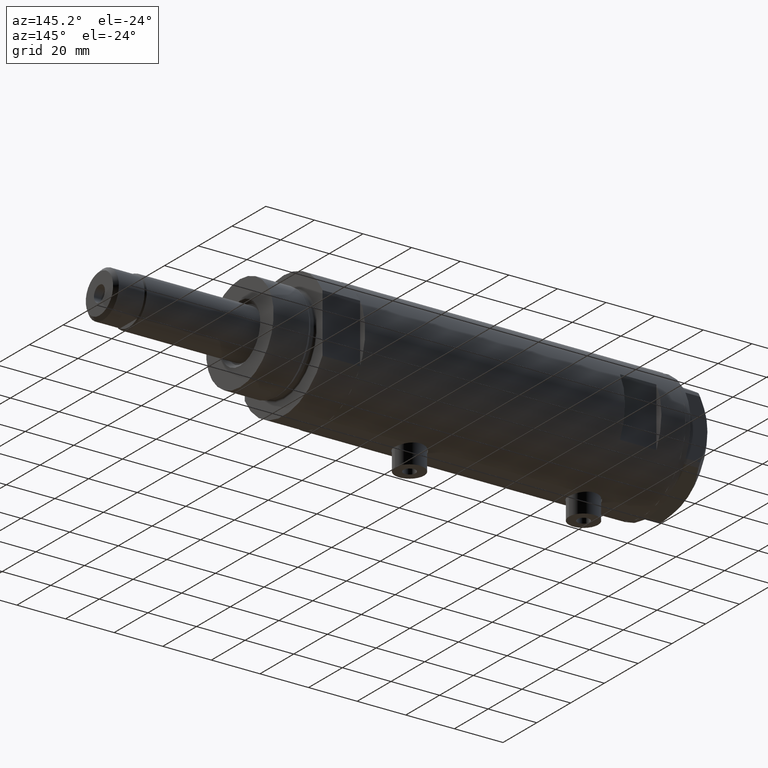
[diagram: clean part render]
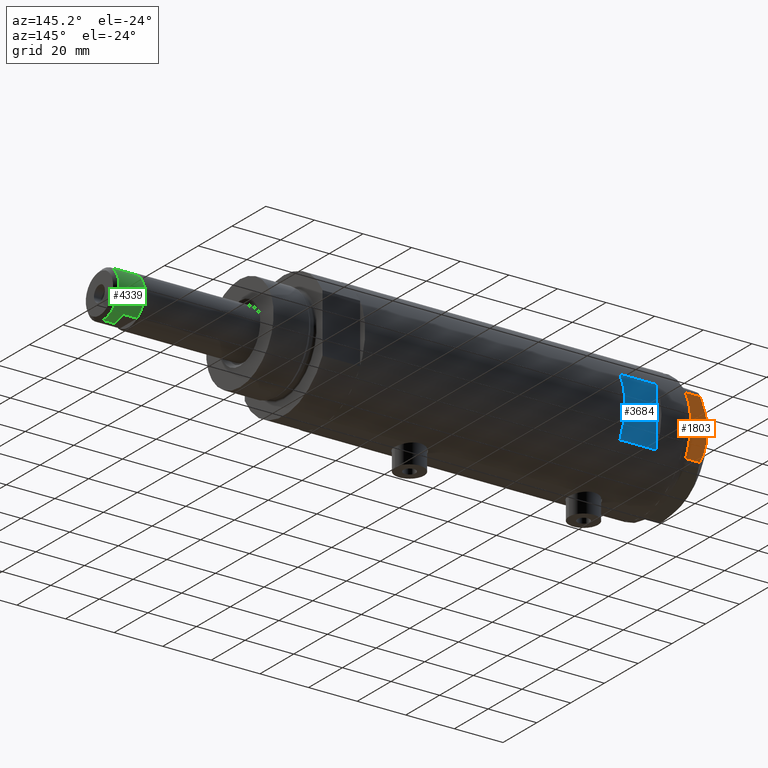
[diagram: same view with three faces highlighted in distinct colors, each labeled with its STEP entity id]
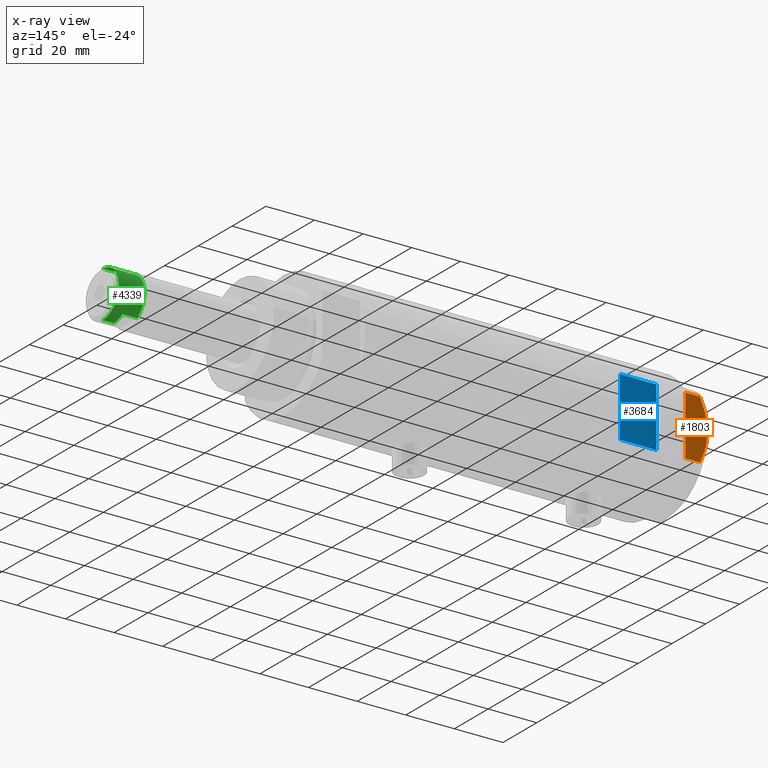
[diagram: x-ray of the same camera — body ghosted, the three highlighted faces saturated]
A machine part, auxiliary view with three faces highlighted in distinct colors.
The next image is the same camera in x-ray (body ghosted, the three faces saturated) — at least one of them is partly hidden behind the body in this view.
Their STEP definitions:

[orange] entity #1803 — the highlighted planar face has unit normal (0, -1, 0).
#101 = VECTOR ( 'NONE', #3932, 1000.000000000000000 ) ;
#159 = CARTESIAN_POINT ( 'NONE',  ( 23.00000000000008527, -13.27905619136115867, 0.000000000000000000 ) ) ;
#209 = CARTESIAN_POINT ( 'NONE',  ( 22.99999999999999289, -4.194757081058811288, 8.703000351525204792 ) ) ;
#236 = CARTESIAN_POINT ( 'NONE',  ( 22.99999999999986500, 8.252113629125430450, 7.581642062680224115 ) ) ;
#246 = CARTESIAN_POINT ( 'NONE',  ( 22.99999999999997513, -2.122900714017905699, 9.000000000000095923 ) ) ;
#251 = CARTESIAN_POINT ( 'NONE',  ( 22.99999999999995026, 2.373657066004705010E-13, 9.000000000000000000 ) ) ;
#276 = CARTESIAN_POINT ( 'NONE',  ( 23.00000000000005684, -10.23890159976104641, 6.840812428290920622 ) ) ;
#279 = CARTESIAN_POINT ( 'NONE',  ( 22.99999999999982236, 12.15905619136163729, 0.000000000000000000 ) ) ;
#301 = ORIENTED_EDGE ( 'NONE', *, *, #2449, .F. ) ;
#415 = VERTEX_POINT ( 'NONE', #3810 ) ;
#416 = ORIENTED_EDGE ( 'NONE', *, *, #3246, .T. ) ;
#451 = VECTOR ( 'NONE', #1608, 1000.000000000000000 ) ;
#464 = DIRECTION ( 'NONE',  ( 1.032024811306395780E-14, -1.000000000000000000, 0.000000000000000000 ) ) ;
#498 = CARTESIAN_POINT ( 'NONE',  ( 22.99999999999993960, 1.063773509315896648, 8.981438083606837708 ) ) ;
#506 = EDGE_LOOP ( 'NONE', ( #301, #5071, #553, #572, #913, #416, #4636 ) ) ;
#553 = ORIENTED_EDGE ( 'NONE', *, *, #4951, .T. ) ;
#572 = ORIENTED_EDGE ( 'NONE', *, *, #5081, .T. ) ;
#597 = CARTESIAN_POINT ( 'NONE',  ( 23.00000000000004263, -8.748091966971204059, 7.396818978284578350 ) ) ;
#663 = EDGE_CURVE ( 'NONE', #415, #4930, #2808, .T. ) ;
#685 = CARTESIAN_POINT ( 'NONE',  ( 22.99999999999990052, 5.228918809624284236, 8.433337033849852560 ) ) ;
#836 = CARTESIAN_POINT ( 'NONE',  ( 23.00000000000007461, -12.15905619136115412, 5.983800287807623519 ) ) ;
#913 = ORIENTED_EDGE ( 'NONE', *, *, #663, .T. ) ;
#1048 = VECTOR ( 'NONE', #4984, 1000.000000000000000 ) ;
#1153 = CARTESIAN_POINT ( 'NONE',  ( 22.99999999999983658, 10.22738952213810926, 6.832470313674774864 ) ) ;
#1217 = CARTESIAN_POINT ( 'NONE',  ( 22.99999999999982236, 12.15905619136163729, 9.000000000000000000 ) ) ;
#1383 = EDGE_CURVE ( 'NONE', #2035, #2961, #2590, .T. ) ;
#1564 = CARTESIAN_POINT ( 'NONE',  ( 23.00000000000007461, -12.15905619136115412, 5.983800287807623519 ) ) ;
#1584 = DIRECTION ( 'NONE',  ( -1.032024811306395780E-14, 1.000000000000000000, 0.000000000000000000 ) ) ;
#1598 = VERTEX_POINT ( 'NONE', #251 ) ;
#1608 = DIRECTION ( 'NONE',  ( 0.000000000000000000, 0.000000000000000000, 1.000000000000000000 ) ) ;
#1723 = B_SPLINE_CURVE_WITH_KNOTS ( 'NONE', 3,
 ( #3410, #3035, #498, #1753, #1959, #5067, #685, #2725, #236, #4761, #1153, #3491, #1854, #3458 ),
 .UNSPECIFIED., .F., .F.,
 ( 4, 2, 2, 2, 2, 2, 4 ),
 ( 0.04777139595992689614, 0.04934380568070229067, 0.05091621540147768521, 0.05406103484302848122, 0.05720585428457927030, 0.05877826400535466483, 0.06035067372613005937 ),
 .UNSPECIFIED. ) ;
#1753 = CARTESIAN_POINT ( 'NONE',  ( 22.99999999999992539, 2.119709279062085727, 8.908535212173203988 ) ) ;
#1803 = ADVANCED_FACE ( 'NONE', ( #3260 ), #2872, .F. ) ;
#1854 = CARTESIAN_POINT ( 'NONE',  ( 22.99999999999982947, 11.68282849742352525, 6.206372352695418648 ) ) ;
#1959 = CARTESIAN_POINT ( 'NONE',  ( 22.99999999999992184, 2.643615312305318099, 8.854304560636265364 ) ) ;
#2035 = VERTEX_POINT ( 'NONE', #836 ) ;
#2056 = LINE ( 'NONE', #1217, #451 ) ;
#2199 = CARTESIAN_POINT ( 'NONE',  ( 23.00000000000007461, -12.15905619136115590, 0.000000000000000000 ) ) ;
#2213 = CARTESIAN_POINT ( 'NONE',  ( 23.00000000000002842, -7.239756182922028493, 7.892186063422852449 ) ) ;
#2292 = LINE ( 'NONE', #159, #1048 ) ;
#2322 = CARTESIAN_POINT ( 'NONE',  ( 22.99999999999995026, 2.373657066004705010E-13, 9.000000000000000000 ) ) ;
#2393 = VECTOR ( 'NONE', #1584, 1000.000000000000000 ) ;
#2449 = EDGE_CURVE ( 'NONE', #2035, #1598, #2683, .T. ) ;
#2590 = LINE ( 'NONE', #4512, #4391 ) ;
#2683 = B_SPLINE_CURVE_WITH_KNOTS ( 'NONE', 3,
 ( #1564, #3918, #276, #597, #4639, #2213, #3818, #209, #246, #2322 ),
 .UNSPECIFIED., .F., .F.,
 ( 4, 2, 2, 2, 4 ),
 ( 0.03516523594057417712, 0.03831677594541235687, 0.03989254594783144675, 0.04146831595025053663, 0.04777139595992689614 ),
 .UNSPECIFIED. ) ;
#2725 = CARTESIAN_POINT ( 'NONE',  ( 22.99999999999987921, 7.253003311474552461, 7.903276810347635184 ) ) ;
#2791 = LINE ( 'NONE', #4716, #2393 ) ;
#2808 = LINE ( 'NONE', #4763, #101 ) ;
#2826 = CARTESIAN_POINT ( 'NONE',  ( 23.00000000000007461, -12.12435565298200224, 0.000000000000000000 ) ) ;
#2872 = PLANE ( 'NONE',  #3382 ) ;
#2961 = VERTEX_POINT ( 'NONE', #2199 ) ;
#3035 = CARTESIAN_POINT ( 'NONE',  ( 22.99999999999994671, 0.5295934231899334099, 9.000000000000095923 ) ) ;
#3236 = DIRECTION ( 'NONE',  ( -1.000000000000000000, -1.032024811306395780E-14, 0.000000000000000000 ) ) ;
#3246 = EDGE_CURVE ( 'NONE', #4930, #3780, #2056, .T. ) ;
#3260 = FACE_OUTER_BOUND ( 'NONE', #506, .T. ) ;
#3292 = DIRECTION ( 'NONE',  ( 0.000000000000000000, 0.000000000000000000, -1.000000000000000000 ) ) ;
#3382 = AXIS2_PLACEMENT_3D ( 'NONE', #3716, #3236, #464 ) ;
#3410 = CARTESIAN_POINT ( 'NONE',  ( 22.99999999999995026, 2.373657066004705010E-13, 9.000000000000000000 ) ) ;
#3458 = CARTESIAN_POINT ( 'NONE',  ( 22.99999999999982236, 12.15905619136164262, 5.983800287807618190 ) ) ;
#3491 = CARTESIAN_POINT ( 'NONE',  ( 22.99999999999984368, 11.20155944044832630, 6.421102682632754188 ) ) ;
#3716 = CARTESIAN_POINT ( 'NONE',  ( 23.00000000000008527, -13.27905619136115867, 9.000000000000000000 ) ) ;
#3780 = VERTEX_POINT ( 'NONE', #4971 ) ;
#3810 = CARTESIAN_POINT ( 'NONE',  ( 22.99999999999982592, 12.12435565298247653, 0.000000000000000000 ) ) ;
#3818 = CARTESIAN_POINT ( 'NONE',  ( 23.00000000000002132, -6.734330413511252722, 8.039389741252669808 ) ) ;
#3918 = CARTESIAN_POINT ( 'NONE',  ( 23.00000000000006395, -11.20825071633898240, 6.428173306378455187 ) ) ;
#3932 = DIRECTION ( 'NONE',  ( -1.032024811306395780E-14, 1.000000000000000000, 0.000000000000000000 ) ) ;
#4391 = VECTOR ( 'NONE', #3292, 1000.000000000000000 ) ;
#4512 = CARTESIAN_POINT ( 'NONE',  ( 23.00000000000007461, -12.15905619136115590, 9.000000000000000000 ) ) ;
#4635 = EDGE_CURVE ( 'NONE', #1598, #3780, #1723, .T. ) ;
#4636 = ORIENTED_EDGE ( 'NONE', *, *, #4635, .F. ) ;
#4639 = CARTESIAN_POINT ( 'NONE',  ( 23.00000000000003197, -8.246028007352183664, 7.571131808646910599 ) ) ;
#4716 = CARTESIAN_POINT ( 'NONE',  ( 23.00000000000008527, -13.27905619136115867, 0.000000000000000000 ) ) ;
#4761 = CARTESIAN_POINT ( 'NONE',  ( 22.99999999999985079, 9.734726261263462632, 7.028924700095659617 ) ) ;
#4763 = CARTESIAN_POINT ( 'NONE',  ( 23.00000000000008527, -13.27905619136115867, 0.000000000000000000 ) ) ;
#4930 = VERTEX_POINT ( 'NONE', #279 ) ;
#4951 = EDGE_CURVE ( 'NONE', #2961, #5031, #2292, .T. ) ;
#4971 = CARTESIAN_POINT ( 'NONE',  ( 22.99999999999982236, 12.15905619136164262, 5.983800287807618190 ) ) ;
#4984 = DIRECTION ( 'NONE',  ( -1.032024811306395780E-14, 1.000000000000000000, 0.000000000000000000 ) ) ;
#5031 = VERTEX_POINT ( 'NONE', #2826 ) ;
#5067 = CARTESIAN_POINT ( 'NONE',  ( 22.99999999999990763, 4.203926054642127319, 8.641681223122510858 ) ) ;
#5071 = ORIENTED_EDGE ( 'NONE', *, *, #1383, .T. ) ;
#5081 = EDGE_CURVE ( 'NONE', #5031, #415, #2791, .T. ) ;

[blue] entity #3684 — the highlighted planar face has unit normal (0, -1, -0).
#30 = LINE ( 'NONE', #492, #3651 ) ;
#43 = VERTEX_POINT ( 'NONE', #3950 ) ;
#61 = CARTESIAN_POINT ( 'NONE',  ( -12.12435565298214080, 23.00000000000000355, 40.95000000000000284 ) ) ;
#63 = CARTESIAN_POINT ( 'NONE',  ( -26.00000000000000355, 23.00000000000000355, 40.95000000000000284 ) ) ;
#163 = DIRECTION ( 'NONE',  ( -0.000000000000000000, -0.000000000000000000, -1.000000000000000000 ) ) ;
#492 = CARTESIAN_POINT ( 'NONE',  ( -26.00000000000000355, 23.00000000000000355, 55.95000000000000284 ) ) ;
#508 = CARTESIAN_POINT ( 'NONE',  ( 12.12435565298214080, 23.00000000000000355, -65.95000000000000284 ) ) ;
#863 = ORIENTED_EDGE ( 'NONE', *, *, #927, .F. ) ;
#886 = AXIS2_PLACEMENT_3D ( 'NONE', #1143, #1845, #2748 ) ;
#927 = EDGE_CURVE ( 'NONE', #3274, #1931, #1297, .T. ) ;
#1041 = ORIENTED_EDGE ( 'NONE', *, *, #1794, .T. ) ;
#1064 = EDGE_CURVE ( 'NONE', #1310, #1931, #4116, .T. ) ;
#1143 = CARTESIAN_POINT ( 'NONE',  ( -26.00000000000000355, 23.00000000000000355, 55.95000000000000284 ) ) ;
#1297 = LINE ( 'NONE', #63, #4128 ) ;
#1310 = VERTEX_POINT ( 'NONE', #3979 ) ;
#1782 = VECTOR ( 'NONE', #163, 1000.000000000000000 ) ;
#1794 = EDGE_CURVE ( 'NONE', #43, #1310, #30, .T. ) ;
#1845 = DIRECTION ( 'NONE',  ( 0.000000000000000000, -1.000000000000000000, -0.000000000000000000 ) ) ;
#1931 = VERTEX_POINT ( 'NONE', #3459 ) ;
#2050 = DIRECTION ( 'NONE',  ( 1.000000000000000000, -0.000000000000000000, -0.000000000000000000 ) ) ;
#2140 = VECTOR ( 'NONE', #3209, 1000.000000000000000 ) ;
#2748 = DIRECTION ( 'NONE',  ( 0.000000000000000000, 0.000000000000000000, -1.000000000000000000 ) ) ;
#3186 = EDGE_CURVE ( 'NONE', #3274, #43, #4368, .T. ) ;
#3209 = DIRECTION ( 'NONE',  ( 0.000000000000000000, 0.000000000000000000, 1.000000000000000000 ) ) ;
#3264 = DIRECTION ( 'NONE',  ( 1.000000000000000000, -0.000000000000000000, -0.000000000000000000 ) ) ;
#3274 = VERTEX_POINT ( 'NONE', #61 ) ;
#3376 = ORIENTED_EDGE ( 'NONE', *, *, #3186, .T. ) ;
#3459 = CARTESIAN_POINT ( 'NONE',  ( 12.12435565298213724, 23.00000000000000355, 40.95000000000000284 ) ) ;
#3651 = VECTOR ( 'NONE', #2050, 1000.000000000000000 ) ;
#3684 = ADVANCED_FACE ( 'NONE', ( #4748 ), #4641, .F. ) ;
#3699 = CARTESIAN_POINT ( 'NONE',  ( -12.12435565298214080, 23.00000000000000355, -65.95000000000000284 ) ) ;
#3950 = CARTESIAN_POINT ( 'NONE',  ( -12.12435565298214080, 23.00000000000000355, 55.95000000000000284 ) ) ;
#3979 = CARTESIAN_POINT ( 'NONE',  ( 12.12435565298214080, 23.00000000000000355, 55.95000000000000284 ) ) ;
#4116 = LINE ( 'NONE', #508, #1782 ) ;
#4128 = VECTOR ( 'NONE', #3264, 1000.000000000000000 ) ;
#4187 = ORIENTED_EDGE ( 'NONE', *, *, #1064, .T. ) ;
#4368 = LINE ( 'NONE', #3699, #2140 ) ;
#4641 = PLANE ( 'NONE',  #886 ) ;
#4719 = EDGE_LOOP ( 'NONE', ( #4187, #863, #3376, #1041 ) ) ;
#4748 = FACE_OUTER_BOUND ( 'NONE', #4719, .T. ) ;

[green] entity #4339 — the highlighted cylindrical surface (edge-blend (fillet) strip) has radius 9.5 mm, axis along (-1, -0, 0).
#41 = VECTOR ( 'NONE', #1693, 1000.000000000000000 ) ;
#52 = ORIENTED_EDGE ( 'NONE', *, *, #5023, .T. ) ;
#186 = VECTOR ( 'NONE', #3084, 1000.000000000000000 ) ;
#221 = DIRECTION ( 'NONE',  ( 1.000000000000000000, 0.000000000000000000, 0.000000000000000000 ) ) ;
#272 = VERTEX_POINT ( 'NONE', #325 ) ;
#325 = CARTESIAN_POINT ( 'NONE',  ( 9.500000000000000000, 1.163414459189985485E-15, 193.4000000000000057 ) ) ;
#328 = CYLINDRICAL_SURFACE ( 'NONE', #714, 9.500000000000001776 ) ;
#394 = CARTESIAN_POINT ( 'NONE',  ( -7.982950582334829015, 5.150000000000015454, 187.4000000000000057 ) ) ;
#514 = VECTOR ( 'NONE', #2464, 1000.000000000000000 ) ;
#519 = ORIENTED_EDGE ( 'NONE', *, *, #3053, .F. ) ;
#537 = EDGE_CURVE ( 'NONE', #4183, #5179, #861, .T. ) ;
#679 = CARTESIAN_POINT ( 'NONE',  ( -7.982950582334830791, 5.149999999999999467, 193.4000000000000057 ) ) ;
#714 = AXIS2_PLACEMENT_3D ( 'NONE', #4286, #2770, #1508 ) ;
#758 = DIRECTION ( 'NONE',  ( 0.000000000000000000, 0.000000000000000000, -1.000000000000000000 ) ) ;
#854 = CARTESIAN_POINT ( 'NONE',  ( 9.500000000000001776, 1.163414459189985682E-15, 198.0000000000000000 ) ) ;
#858 = CARTESIAN_POINT ( 'NONE',  ( 0.000000000000000000, 0.000000000000000000, 187.4000000000000057 ) ) ;
#860 = LINE ( 'NONE', #4887, #514 ) ;
#861 = CIRCLE ( 'NONE', #1025, 9.500000000000000000 ) ;
#867 = EDGE_CURVE ( 'NONE', #4596, #2321, #860, .T. ) ;
#946 = AXIS2_PLACEMENT_3D ( 'NONE', #2109, #3725, #2932 ) ;
#1012 = ORIENTED_EDGE ( 'NONE', *, *, #537, .T. ) ;
#1025 = AXIS2_PLACEMENT_3D ( 'NONE', #2238, #2579, #221 ) ;
#1103 = CARTESIAN_POINT ( 'NONE',  ( -9.500000000000001776, 0.000000000000000000, 198.0000000000000000 ) ) ;
#1311 = VERTEX_POINT ( 'NONE', #394 ) ;
#1351 = DIRECTION ( 'NONE',  ( -0.000000000000000000, -0.000000000000000000, -1.000000000000000000 ) ) ;
#1446 = EDGE_CURVE ( 'NONE', #272, #4596, #3214, .T. ) ;
#1455 = FACE_OUTER_BOUND ( 'NONE', #4192, .T. ) ;
#1508 = DIRECTION ( 'NONE',  ( -1.000000000000000000, 0.000000000000000000, 0.000000000000000000 ) ) ;
#1693 = DIRECTION ( 'NONE',  ( -0.000000000000000000, -0.000000000000000000, -1.000000000000000000 ) ) ;
#1747 = LINE ( 'NONE', #4953, #4321 ) ;
#2021 = ORIENTED_EDGE ( 'NONE', *, *, #4797, .T. ) ;
#2089 = DIRECTION ( 'NONE',  ( 1.000000000000000000, 0.000000000000000000, 0.000000000000000000 ) ) ;
#2109 = CARTESIAN_POINT ( 'NONE',  ( 0.000000000000000000, 0.000000000000000000, 193.4000000000000057 ) ) ;
#2238 = CARTESIAN_POINT ( 'NONE',  ( 0.000000000000000000, 0.000000000000000000, 193.4000000000000057 ) ) ;
#2282 = EDGE_CURVE ( 'NONE', #4183, #1311, #2750, .T. ) ;
#2321 = VERTEX_POINT ( 'NONE', #2720 ) ;
#2324 = CARTESIAN_POINT ( 'NONE',  ( -9.500000000000000000, 0.000000000000000000, 193.4000000000000057 ) ) ;
#2367 = CARTESIAN_POINT ( 'NONE',  ( 0.000000000000000000, 0.000000000000000000, 198.0000000000000000 ) ) ;
#2462 = DIRECTION ( 'NONE',  ( 0.000000000000000000, 0.000000000000000000, 1.000000000000000000 ) ) ;
#2464 = DIRECTION ( 'NONE',  ( -0.000000000000000000, -0.000000000000000000, -1.000000000000000000 ) ) ;
#2493 = CARTESIAN_POINT ( 'NONE',  ( 9.500000000000001776, 1.163414459189985682E-15, 193.4000000000000057 ) ) ;
#2579 = DIRECTION ( 'NONE',  ( 0.000000000000000000, 0.000000000000000000, 1.000000000000000000 ) ) ;
#2620 = ORIENTED_EDGE ( 'NONE', *, *, #1446, .T. ) ;
#2720 = CARTESIAN_POINT ( 'NONE',  ( 7.982950582334830791, 5.149999999999999467, 187.4000000000000057 ) ) ;
#2750 = LINE ( 'NONE', #679, #186 ) ;
#2770 = DIRECTION ( 'NONE',  ( -0.000000000000000000, -0.000000000000000000, -1.000000000000000000 ) ) ;
#2816 = AXIS2_PLACEMENT_3D ( 'NONE', #858, #2462, #2089 ) ;
#2932 = DIRECTION ( 'NONE',  ( 1.000000000000000000, 0.000000000000000000, 0.000000000000000000 ) ) ;
#3004 = ORIENTED_EDGE ( 'NONE', *, *, #867, .T. ) ;
#3053 = EDGE_CURVE ( 'NONE', #3488, #5179, #1747, .T. ) ;
#3084 = DIRECTION ( 'NONE',  ( -0.000000000000000000, -0.000000000000000000, -1.000000000000000000 ) ) ;
#3214 = CIRCLE ( 'NONE', #946, 9.500000000000000000 ) ;
#3483 = ORIENTED_EDGE ( 'NONE', *, *, #4827, .T. ) ;
#3484 = CIRCLE ( 'NONE', #2816, 9.500000000000008882 ) ;
#3488 = VERTEX_POINT ( 'NONE', #1103 ) ;
#3725 = DIRECTION ( 'NONE',  ( 0.000000000000000000, 0.000000000000000000, 1.000000000000000000 ) ) ;
#3827 = ORIENTED_EDGE ( 'NONE', *, *, #2282, .F. ) ;
#3987 = AXIS2_PLACEMENT_3D ( 'NONE', #2367, #758, #5157 ) ;
#4183 = VERTEX_POINT ( 'NONE', #4853 ) ;
#4192 = EDGE_LOOP ( 'NONE', ( #52, #3483, #2620, #3004, #2021, #3827, #1012, #519 ) ) ;
#4286 = CARTESIAN_POINT ( 'NONE',  ( 0.000000000000000000, 0.000000000000000000, 193.4000000000000057 ) ) ;
#4321 = VECTOR ( 'NONE', #1351, 1000.000000000000000 ) ;
#4339 = ADVANCED_FACE ( 'NONE', ( #1455 ), #328, .T. ) ;
#4454 = VERTEX_POINT ( 'NONE', #854 ) ;
#4582 = CARTESIAN_POINT ( 'NONE',  ( 7.982950582334830791, 5.149999999999999467, 193.4000000000000057 ) ) ;
#4596 = VERTEX_POINT ( 'NONE', #4582 ) ;
#4797 = EDGE_CURVE ( 'NONE', #2321, #1311, #3484, .T. ) ;
#4827 = EDGE_CURVE ( 'NONE', #4454, #272, #4885, .T. ) ;
#4853 = CARTESIAN_POINT ( 'NONE',  ( -7.982950582334830791, 5.149999999999999467, 193.4000000000000057 ) ) ;
#4885 = LINE ( 'NONE', #2493, #41 ) ;
#4887 = CARTESIAN_POINT ( 'NONE',  ( 7.982950582334830791, 5.149999999999999467, 193.4000000000000057 ) ) ;
#4953 = CARTESIAN_POINT ( 'NONE',  ( -9.500000000000001776, 0.000000000000000000, 193.4000000000000057 ) ) ;
#5023 = EDGE_CURVE ( 'NONE', #3488, #4454, #5084, .T. ) ;
#5084 = CIRCLE ( 'NONE', #3987, 9.500000000000001776 ) ;
#5157 = DIRECTION ( 'NONE',  ( 1.000000000000000000, 0.000000000000000000, 0.000000000000000000 ) ) ;
#5179 = VERTEX_POINT ( 'NONE', #2324 ) ;